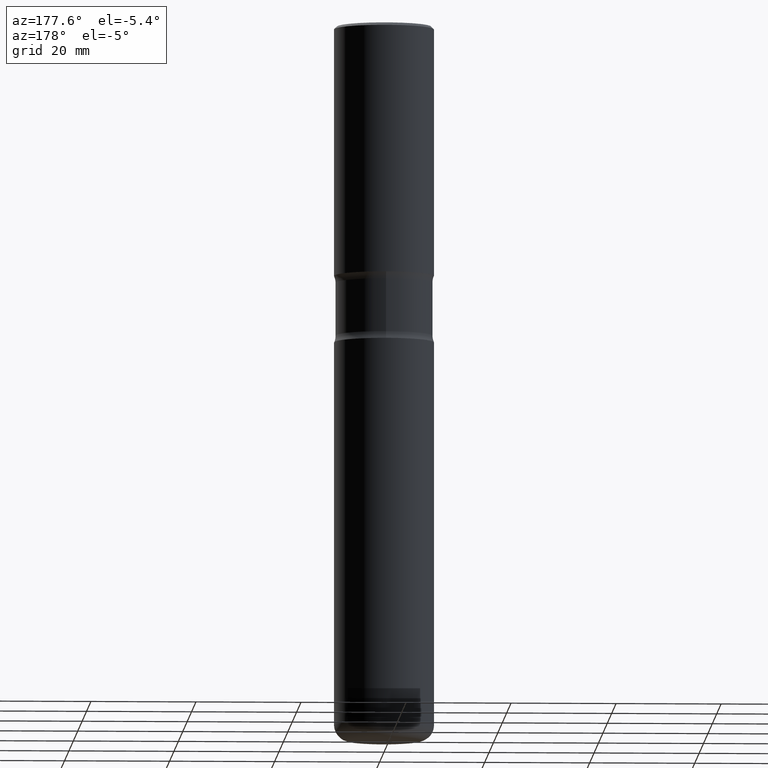
[diagram: clean part render]
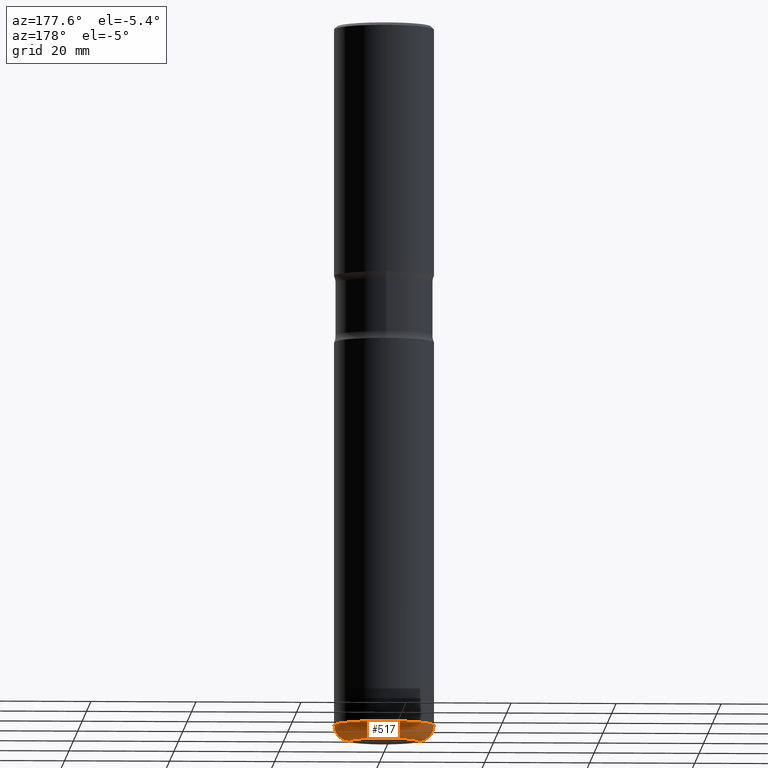
[diagram: same view with one face highlighted and labeled with its STEP entity id]
A machine part, auxiliary view. The second image highlights one B-rep face of the part: STEP entity #517.
In plain terms, the highlighted toroidal blend (fillet) surface has major radius 6.477 mm and minor (blend) radius 3.048 mm.
Its self-contained STEP definition (entity closure, byte-faithful):
#15 = VERTEX_POINT ( 'NONE', #332 ) ;
#21 = CARTESIAN_POINT ( 'NONE',  ( -0.3750000000000004441, -1.568319917652035099E-14, -5.254999999999999893 ) ) ;
#41 = CARTESIAN_POINT ( 'NONE',  ( -0.2550000000000004485, -1.631901369830699821E-14, -5.374999999999999112 ) ) ;
#54 = VERTEX_POINT ( 'NONE', #41 ) ;
#88 = AXIS2_PLACEMENT_3D ( 'NONE', #494, #541, #166 ) ;
#119 = VERTEX_POINT ( 'NONE', #127 ) ;
#126 = CIRCLE ( 'NONE', #351, 0.3750000000000004996 ) ;
#127 = CARTESIAN_POINT ( 'NONE',  ( 0.3750000000000004441, -2.096634543975308301E-14, -5.254999999999999893 ) ) ;
#130 = EDGE_CURVE ( 'NONE', #54, #412, #284, .T. ) ;
#166 = DIRECTION ( 'NONE',  ( 1.000000000000000000, -6.982962677686273021E-15, 0.000000000000000000 ) ) ;
#173 = ORIENTED_EDGE ( 'NONE', *, *, #501, .F. ) ;
#218 = DIRECTION ( 'NONE',  ( -2.445468806185136597E-29, 3.491481338843145583E-15, 1.000000000000000000 ) ) ;
#241 = CARTESIAN_POINT ( 'NONE',  ( 1.285093857650289066E-28, -1.834773443562072984E-14, -5.254999999999999893 ) ) ;
#243 = DIRECTION ( 'NONE',  ( 1.000000000000000000, -6.982962677686263555E-15, 0.000000000000000000 ) ) ;
#249 = DIRECTION ( 'NONE',  ( -2.445468806185136597E-29, 3.491481338843145583E-15, 1.000000000000000000 ) ) ;
#250 = DIRECTION ( 'NONE',  ( 7.105427357601001859E-15, 1.000000000000000000, -3.491481338843145583E-15 ) ) ;
#254 = FACE_OUTER_BOUND ( 'NONE', #277, .T. ) ;
#277 = EDGE_LOOP ( 'NONE', ( #316, #464, #530, #173 ) ) ;
#283 = CARTESIAN_POINT ( 'NONE',  ( 1.285093857650289066E-28, -1.834773443562072984E-14, -5.254999999999999893 ) ) ;
#284 = CIRCLE ( 'NONE', #431, 0.1199999999999999123 ) ;
#292 = CARTESIAN_POINT ( 'NONE',  ( -0.2550000000000004485, -1.653585045943247197E-14, -5.254999999999999893 ) ) ;
#296 = TOROIDAL_SURFACE ( 'NONE', #415, 0.2550000000000004485, 0.1199999999999999262 ) ;
#316 = ORIENTED_EDGE ( 'NONE', *, *, #546, .T. ) ;
#325 = AXIS2_PLACEMENT_3D ( 'NONE', #409, #218, #369 ) ;
#331 = EDGE_CURVE ( 'NONE', #119, #412, #126, .T. ) ;
#332 = CARTESIAN_POINT ( 'NONE',  ( 0.2550000000000004485, -2.054736767909190638E-14, -5.374999999999999112 ) ) ;
#351 = AXIS2_PLACEMENT_3D ( 'NONE', #241, #390, #243 ) ;
#369 = DIRECTION ( 'NONE',  ( 1.000000000000000000, -6.982962677686263555E-15, 0.000000000000000000 ) ) ;
#390 = DIRECTION ( 'NONE',  ( -2.445468806185136597E-29, 3.491481338843145583E-15, 1.000000000000000000 ) ) ;
#409 = CARTESIAN_POINT ( 'NONE',  ( 1.314439483324510921E-28, -1.876671219628190647E-14, -5.374999999999999112 ) ) ;
#412 = VERTEX_POINT ( 'NONE', #21 ) ;
#415 = AXIS2_PLACEMENT_3D ( 'NONE', #283, #249, #549 ) ;
#431 = AXIS2_PLACEMENT_3D ( 'NONE', #292, #250, #550 ) ;
#464 = ORIENTED_EDGE ( 'NONE', *, *, #130, .T. ) ;
#486 = CIRCLE ( 'NONE', #325, 0.2550000000000004485 ) ;
#494 = CARTESIAN_POINT ( 'NONE',  ( 0.2550000000000004485, -2.012838991843072974E-14, -5.254999999999999893 ) ) ;
#501 = EDGE_CURVE ( 'NONE', #15, #119, #509, .T. ) ;
#509 = CIRCLE ( 'NONE', #88, 0.1199999999999999123 ) ;
#517 = ADVANCED_FACE ( 'NONE', ( #254 ), #296, .T. ) ;
#530 = ORIENTED_EDGE ( 'NONE', *, *, #331, .F. ) ;
#541 = DIRECTION ( 'NONE',  ( -6.982962677686266711E-15, -1.000000000000000000, 3.491481338843145583E-15 ) ) ;
#546 = EDGE_CURVE ( 'NONE', #15, #54, #486, .T. ) ;
#549 = DIRECTION ( 'NONE',  ( 1.000000000000000000, -6.982962677686266711E-15, 4.883557194083113462E-29 ) ) ;
#550 = DIRECTION ( 'NONE',  ( -1.000000000000000000, 7.105427357600996337E-15, 0.000000000000000000 ) ) ;